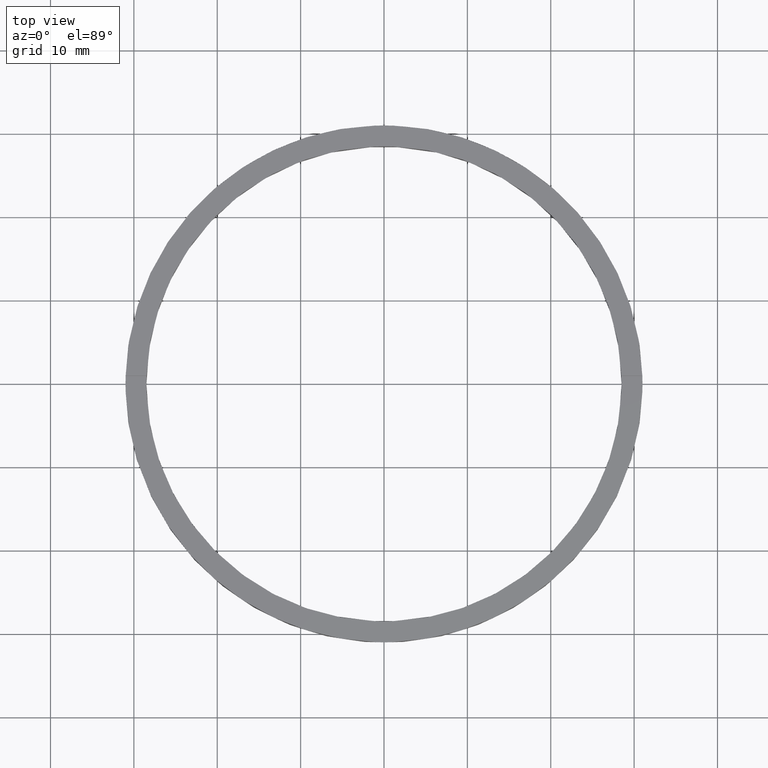
[diagram: clean part render]
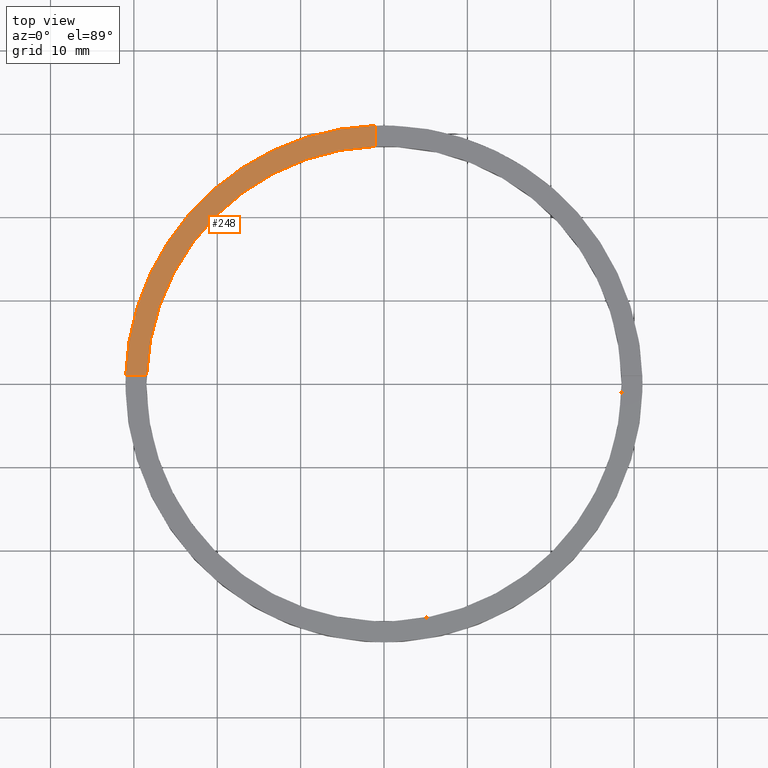
[diagram: same view with one face highlighted and labeled with its STEP entity id]
A machine part, top view. The second image highlights one B-rep face of the part: STEP entity #248.
In plain terms, the highlighted planar face has unit normal (0, 0, 1).
Its self-contained STEP definition (entity closure, byte-faithful):
#32 = CARTESIAN_POINT ( 'NONE',  ( 0.000000000000000000, 0.000000000000000000, 3.000000000000000000 ) ) ;
#71 = ORIENTED_EDGE ( 'NONE', *, *, #358, .F. ) ;
#72 = EDGE_CURVE ( 'NONE', #661, #672, #528, .T. ) ;
#84 = DIRECTION ( 'NONE',  ( 1.000000000000000000, 0.000000000000000000, -0.000000000000000000 ) ) ;
#108 = CARTESIAN_POINT ( 'NONE',  ( -21.00000000000018119, 0.9999999999999763522, 3.000000000000000000 ) ) ;
#112 = EDGE_CURVE ( 'NONE', #572, #672, #269, .T. ) ;
#113 = CIRCLE ( 'NONE', #270, 28.50000000000000000 ) ;
#126 = CARTESIAN_POINT ( 'NONE',  ( 0.000000000000000000, 0.000000000000000000, 3.000000000000000000 ) ) ;
#143 = CARTESIAN_POINT ( 'NONE',  ( -1.000000000000024425, 30.98386676965933617, 3.000000000000000000 ) ) ;
#155 = CARTESIAN_POINT ( 'NONE',  ( -1.000000000000024425, 28.48245073725222909, 3.000000000000000000 ) ) ;
#164 = AXIS2_PLACEMENT_3D ( 'NONE', #32, #350, #387 ) ;
#166 = VECTOR ( 'NONE', #337, 1000.000000000000000 ) ;
#242 = FACE_OUTER_BOUND ( 'NONE', #334, .T. ) ;
#248 = ADVANCED_FACE ( 'NONE', ( #242 ), #521, .T. ) ;
#269 = LINE ( 'NONE', #108, #555 ) ;
#270 = AXIS2_PLACEMENT_3D ( 'NONE', #320, #313, #368 ) ;
#313 = DIRECTION ( 'NONE',  ( 0.000000000000000000, 0.000000000000000000, 1.000000000000000000 ) ) ;
#320 = CARTESIAN_POINT ( 'NONE',  ( 0.000000000000000000, 0.000000000000000000, 3.000000000000000000 ) ) ;
#334 = EDGE_LOOP ( 'NONE', ( #476, #715, #344, #71 ) ) ;
#337 = DIRECTION ( 'NONE',  ( -0.000000000000000000, -1.000000000000000000, -0.000000000000000000 ) ) ;
#344 = ORIENTED_EDGE ( 'NONE', *, *, #112, .F. ) ;
#350 = DIRECTION ( 'NONE',  ( 0.000000000000000000, 0.000000000000000000, 1.000000000000000000 ) ) ;
#358 = EDGE_CURVE ( 'NONE', #479, #572, #113, .T. ) ;
#368 = DIRECTION ( 'NONE',  ( 1.000000000000000000, 0.000000000000000000, 0.000000000000000000 ) ) ;
#372 = DIRECTION ( 'NONE',  ( -1.000000000000000000, -1.951563910473907735E-16, 0.000000000000000000 ) ) ;
#387 = DIRECTION ( 'NONE',  ( 1.000000000000000000, 0.000000000000000000, 0.000000000000000000 ) ) ;
#399 = CARTESIAN_POINT ( 'NONE',  ( -30.98386676965933617, 0.9999999999999744649, 3.000000000000000000 ) ) ;
#449 = DIRECTION ( 'NONE',  ( 0.000000000000000000, 0.000000000000000000, 1.000000000000000000 ) ) ;
#476 = ORIENTED_EDGE ( 'NONE', *, *, #614, .F. ) ;
#479 = VERTEX_POINT ( 'NONE', #155 ) ;
#521 = PLANE ( 'NONE',  #740 ) ;
#528 = CIRCLE ( 'NONE', #164, 31.00000000000000000 ) ;
#555 = VECTOR ( 'NONE', #372, 1000.000000000000000 ) ;
#572 = VERTEX_POINT ( 'NONE', #733 ) ;
#614 = EDGE_CURVE ( 'NONE', #661, #479, #679, .T. ) ;
#661 = VERTEX_POINT ( 'NONE', #143 ) ;
#668 = CARTESIAN_POINT ( 'NONE',  ( -1.000000000000024425, 20.99999999999999645, 3.000000000000000000 ) ) ;
#672 = VERTEX_POINT ( 'NONE', #399 ) ;
#679 = LINE ( 'NONE', #668, #166 ) ;
#715 = ORIENTED_EDGE ( 'NONE', *, *, #72, .T. ) ;
#733 = CARTESIAN_POINT ( 'NONE',  ( -28.48245073725223264, 0.9999999999999749090, 3.000000000000000000 ) ) ;
#740 = AXIS2_PLACEMENT_3D ( 'NONE', #126, #449, #84 ) ;